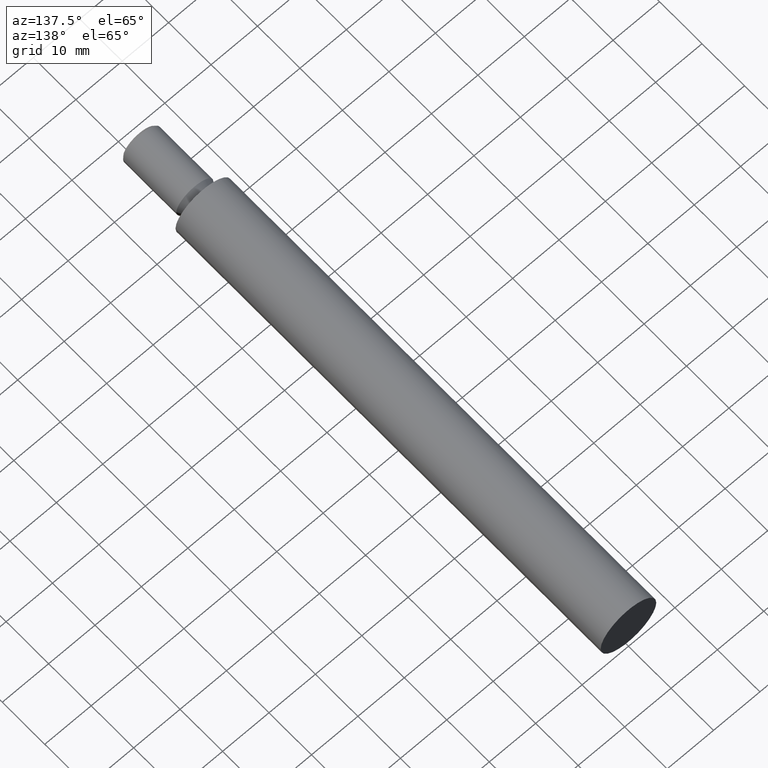
[diagram: clean part render]
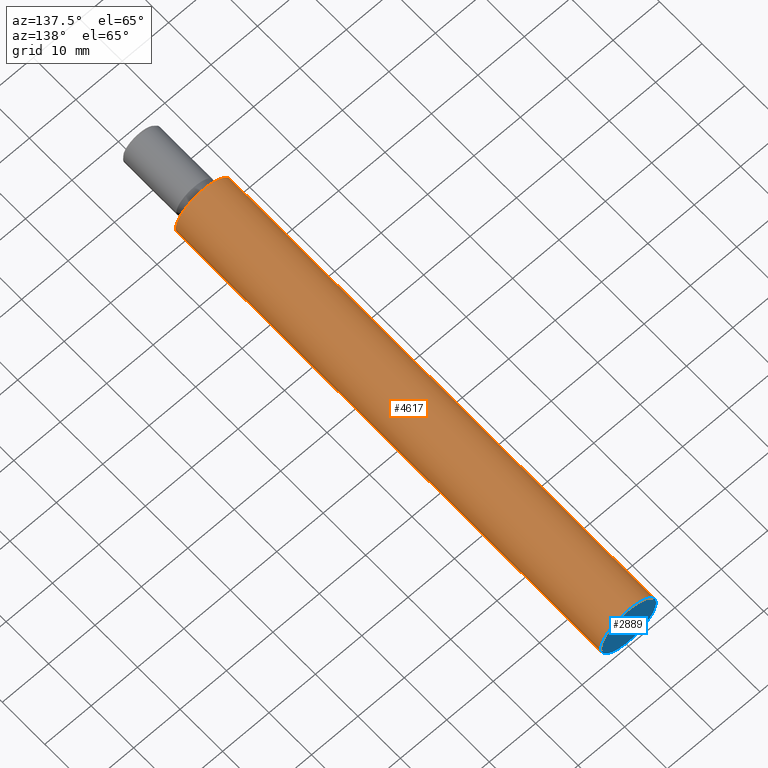
[diagram: same view with the hole feature highlighted: cylindrical wall and planar end face, labeled with their STEP entity ids]
A machine part, auxiliary view. The highlighted faces form one hole feature of diameter 12 mm: the cylindrical wall (entity #4617, orange) and its adjacent planar end face (entity #2889, blue) — they share a circular edge in the B-rep.
Wall:
#91 = CARTESIAN_POINT ( 'NONE',  ( 0.000000000000000000, 100.0000000000000000, 0.000000000000000000 ) ) ;
#148 = DIRECTION ( 'NONE',  ( 1.674721690771509348E-33, -1.000000000000000000, -0.000000000000000000 ) ) ;
#896 = AXIS2_PLACEMENT_3D ( 'NONE', #5353, #148, #8533 ) ;
#1612 = VERTEX_POINT ( 'NONE', #4138 ) ;
#3661 = EDGE_CURVE ( 'NONE', #6356, #6356, #12930, .T. ) ;
#4138 = CARTESIAN_POINT ( 'NONE',  ( 5.999999999999993783, 100.0000000000000000, 0.000000000000000000 ) ) ;
#4617 = ADVANCED_FACE ( 'NONE', ( #7933, #8596 ), #5133, .T. ) ;
#5133 = CYLINDRICAL_SURFACE ( 'NONE', #896, 6.000000000000001776 ) ;
#5353 = CARTESIAN_POINT ( 'NONE',  ( 1.925929944387235853E-31, -15.00000000000000000, 0.000000000000000000 ) ) ;
#5904 = CARTESIAN_POINT ( 'NONE',  ( 6.000000000000009770, 1.004833014462907251E-32, 0.000000000000000000 ) ) ;
#6356 = VERTEX_POINT ( 'NONE', #5904 ) ;
#6379 = DIRECTION ( 'NONE',  ( 1.000000000000000000, 0.000000000000000000, 0.000000000000000000 ) ) ;
#6606 = ORIENTED_EDGE ( 'NONE', *, *, #6679, .T. ) ;
#6679 = EDGE_CURVE ( 'NONE', #1612, #1612, #7201, .T. ) ;
#7201 = CIRCLE ( 'NONE', #13211, 5.999999999999993783 ) ;
#7321 = AXIS2_PLACEMENT_3D ( 'NONE', #8021, #8975, #11017 ) ;
#7921 = EDGE_LOOP ( 'NONE', ( #6606 ) ) ;
#7933 = FACE_OUTER_BOUND ( 'NONE', #7921, .T. ) ;
#8021 = CARTESIAN_POINT ( 'NONE',  ( 1.674721690771509485E-31, 0.000000000000000000, 0.000000000000000000 ) ) ;
#8533 = DIRECTION ( 'NONE',  ( 1.000000000000000000, 0.000000000000000000, 0.000000000000000000 ) ) ;
#8596 = FACE_OUTER_BOUND ( 'NONE', #10796, .T. ) ;
#8975 = DIRECTION ( 'NONE',  ( 1.674721690771509348E-33, -1.000000000000000000, -0.000000000000000000 ) ) ;
#10796 = EDGE_LOOP ( 'NONE', ( #13346 ) ) ;
#11017 = DIRECTION ( 'NONE',  ( 1.000000000000000000, 1.674721690771509348E-33, 0.000000000000000000 ) ) ;
#12723 = DIRECTION ( 'NONE',  ( 1.674721690771509348E-33, -1.000000000000000000, -0.000000000000000000 ) ) ;
#12930 = CIRCLE ( 'NONE', #7321, 6.000000000000009770 ) ;
#13211 = AXIS2_PLACEMENT_3D ( 'NONE', #91, #12723, #6379 ) ;
#13346 = ORIENTED_EDGE ( 'NONE', *, *, #3661, .F. ) ;
End face:
#91 = CARTESIAN_POINT ( 'NONE',  ( 0.000000000000000000, 100.0000000000000000, 0.000000000000000000 ) ) ;
#1612 = VERTEX_POINT ( 'NONE', #4138 ) ;
#1818 = DIRECTION ( 'NONE',  ( -1.000000000000000000, -1.674721690771509348E-33, 0.000000000000000000 ) ) ;
#1953 = CARTESIAN_POINT ( 'NONE',  ( 8.414078224621741091E-66, 100.0000000000000000, 0.000000000000000000 ) ) ;
#2515 = EDGE_LOOP ( 'NONE', ( #3403 ) ) ;
#2889 = ADVANCED_FACE ( 'NONE', ( #12281 ), #8239, .T. ) ;
#3403 = ORIENTED_EDGE ( 'NONE', *, *, #6679, .F. ) ;
#4138 = CARTESIAN_POINT ( 'NONE',  ( 5.999999999999993783, 100.0000000000000000, 0.000000000000000000 ) ) ;
#6379 = DIRECTION ( 'NONE',  ( 1.000000000000000000, 0.000000000000000000, 0.000000000000000000 ) ) ;
#6679 = EDGE_CURVE ( 'NONE', #1612, #1612, #7201, .T. ) ;
#7201 = CIRCLE ( 'NONE', #13211, 5.999999999999993783 ) ;
#8239 = PLANE ( 'NONE',  #12459 ) ;
#12281 = FACE_OUTER_BOUND ( 'NONE', #2515, .T. ) ;
#12459 = AXIS2_PLACEMENT_3D ( 'NONE', #1953, #13547, #1818 ) ;
#12723 = DIRECTION ( 'NONE',  ( 1.674721690771509348E-33, -1.000000000000000000, -0.000000000000000000 ) ) ;
#13211 = AXIS2_PLACEMENT_3D ( 'NONE', #91, #12723, #6379 ) ;
#13547 = DIRECTION ( 'NONE',  ( -1.674721690771509348E-33, 1.000000000000000000, 0.000000000000000000 ) ) ;